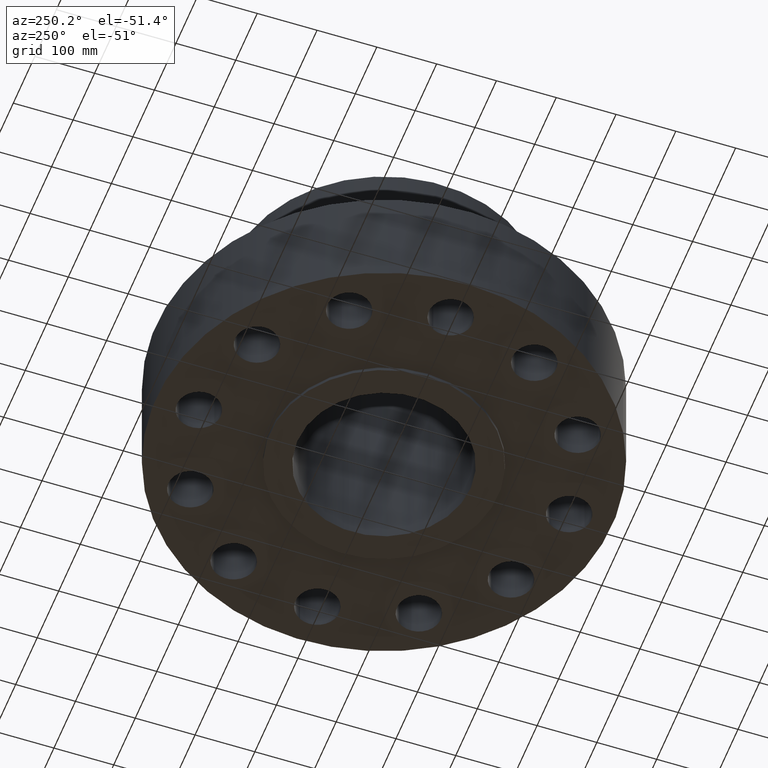
[diagram: clean part render]
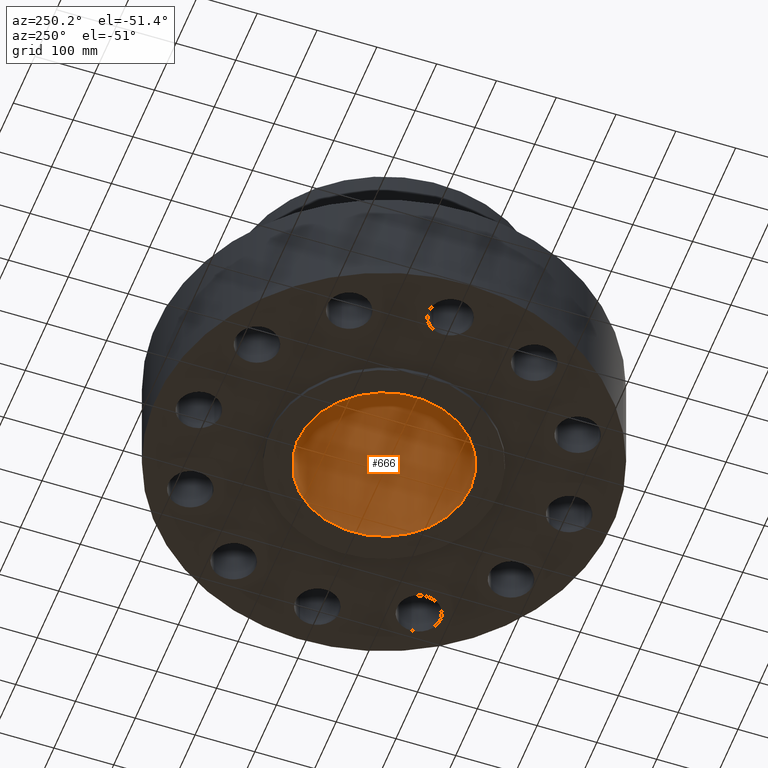
[diagram: same view with one face highlighted and labeled with its STEP entity id]
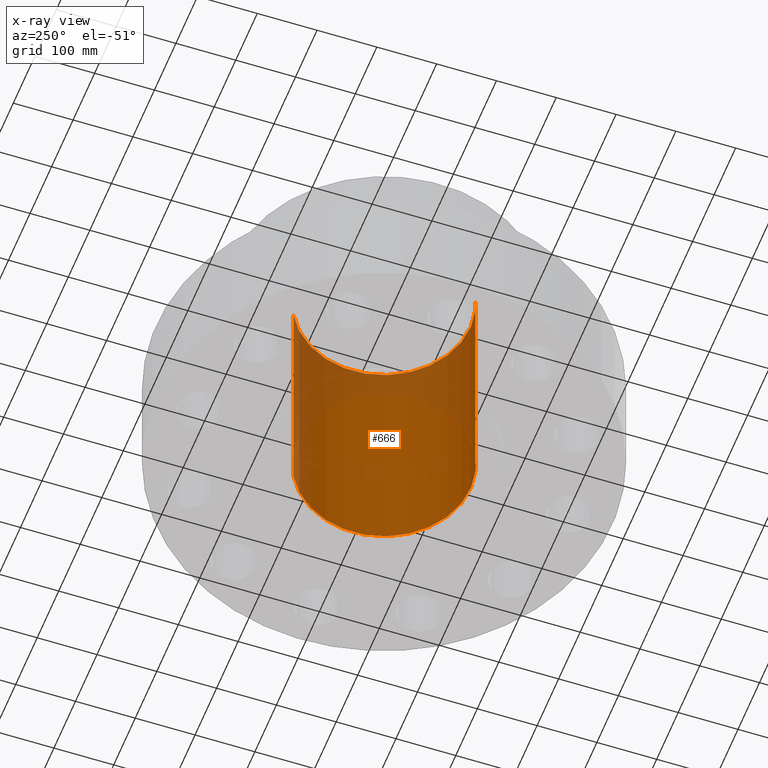
[diagram: x-ray of the same camera — body ghosted, the highlighted face saturated]
A machine part, auxiliary view. The second image highlights one B-rep face of the part: STEP entity #666.
The next image is the same camera in x-ray: the body ghosted, the highlighted face saturated — about 30% of this face is hidden behind the body in this view.
In plain terms, the highlighted cylindrical surface (partial cylindrical patch) has radius 144.526 mm, axis along (0, 0, -1).
Its self-contained STEP definition (entity closure, byte-faithful):
#628=AXIS2_PLACEMENT_3D('Circle Axis2P3D',#626,#627,$) ;
#639=AXIS2_PLACEMENT_3D('Cylinder Axis2P3D',#636,#637,#638) ;
#650=AXIS2_PLACEMENT_3D('Circle Axis2P3D',#648,#649,$) ;
#621=CARTESIAN_POINT('Vertex',(-2.72793131467,-4.99344477718,15.7500000001)) ;
#623=CARTESIAN_POINT('Vertex',(2.72793131467,4.99344477718,15.7500000001)) ;
#626=CARTESIAN_POINT('Axis2P3D Location',(0.,0.,15.7500000001)) ;
#636=CARTESIAN_POINT('Axis2P3D Location',(0.,0.,7.75000000003)) ;
#641=CARTESIAN_POINT('Line Origine',(2.72793131467,4.99344477718,7.75000000003)) ;
#645=CARTESIAN_POINT('Vertex',(2.72793131467,4.99344477718,-0.250000000001)) ;
#648=CARTESIAN_POINT('Axis2P3D Location',(0.,0.,-0.250000000001)) ;
#652=CARTESIAN_POINT('Vertex',(-2.72793131467,-4.99344477718,-0.250000000001)) ;
#655=CARTESIAN_POINT('Line Origine',(-2.72793131467,-4.99344477718,7.75000000003)) ;
#627=DIRECTION('Axis2P3D Direction',(0.,0.,-0.0393700787402)) ;
#637=DIRECTION('Axis2P3D Direction',(0.,0.,-0.0393700787402)) ;
#638=DIRECTION('Axis2P3D XDirection',(-0.0188750212049,-0.0345504945626,0.)) ;
#642=DIRECTION('Vector Direction',(0.,0.,-0.0393700787402)) ;
#649=DIRECTION('Axis2P3D Direction',(0.,0.,-0.0393700787402)) ;
#656=DIRECTION('Vector Direction',(0.,0.,-0.0393700787402)) ;
#643=VECTOR('Line Direction',#642,0.0393700787402) ;
#657=VECTOR('Line Direction',#656,0.0393700787402) ;
#661=ORIENTED_EDGE('',*,*,#630,.F.) ;
#662=ORIENTED_EDGE('',*,*,#647,.T.) ;
#663=ORIENTED_EDGE('',*,*,#654,.T.) ;
#664=ORIENTED_EDGE('',*,*,#659,.F.) ;
#666=ADVANCED_FACE('PartBody',(#665),#640,.F.) ;
#629=CIRCLE('generated circle',#628,5.69000000002) ;
#651=CIRCLE('generated circle',#650,5.69000000002) ;
#640=CYLINDRICAL_SURFACE('generated cylinder',#639,5.69000000002) ;
#630=EDGE_CURVE('',#624,#622,#629,.T.) ;
#647=EDGE_CURVE('',#624,#646,#644,.T.) ;
#654=EDGE_CURVE('',#646,#653,#651,.T.) ;
#659=EDGE_CURVE('',#622,#653,#658,.T.) ;
#660=EDGE_LOOP('',(#661,#662,#663,#664)) ;
#665=FACE_OUTER_BOUND('',#660,.T.) ;
#644=LINE('Line',#641,#643) ;
#658=LINE('Line',#655,#657) ;
#622=VERTEX_POINT('',#621) ;
#624=VERTEX_POINT('',#623) ;
#646=VERTEX_POINT('',#645) ;
#653=VERTEX_POINT('',#652) ;